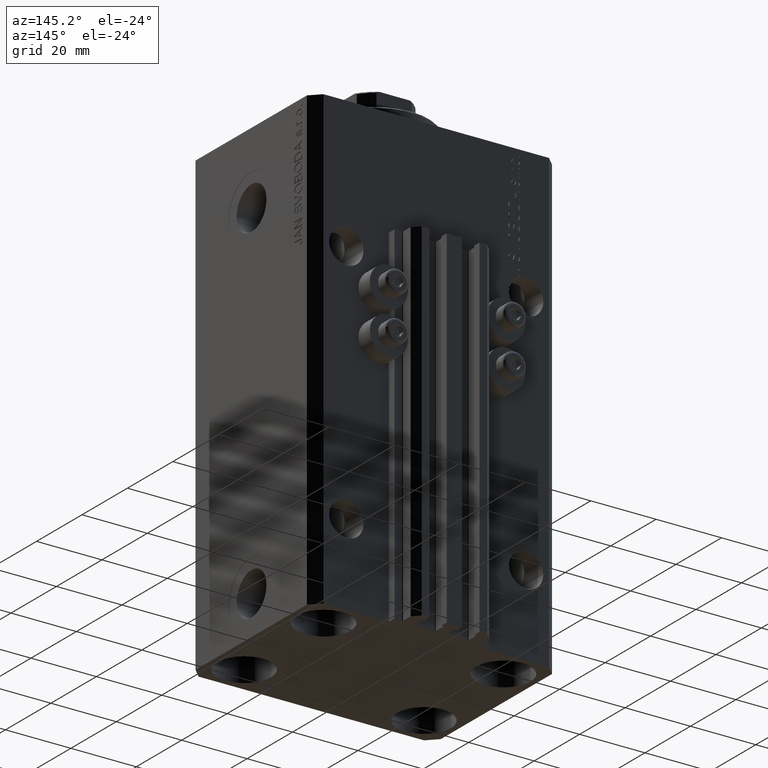
[diagram: clean part render]
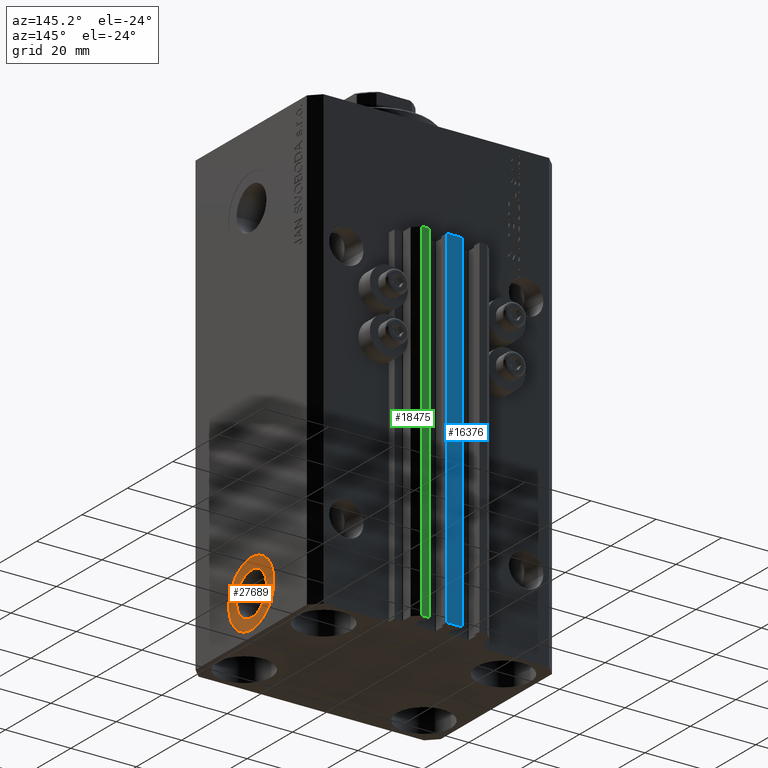
[diagram: same view with three faces highlighted in distinct colors, each labeled with its STEP entity id]
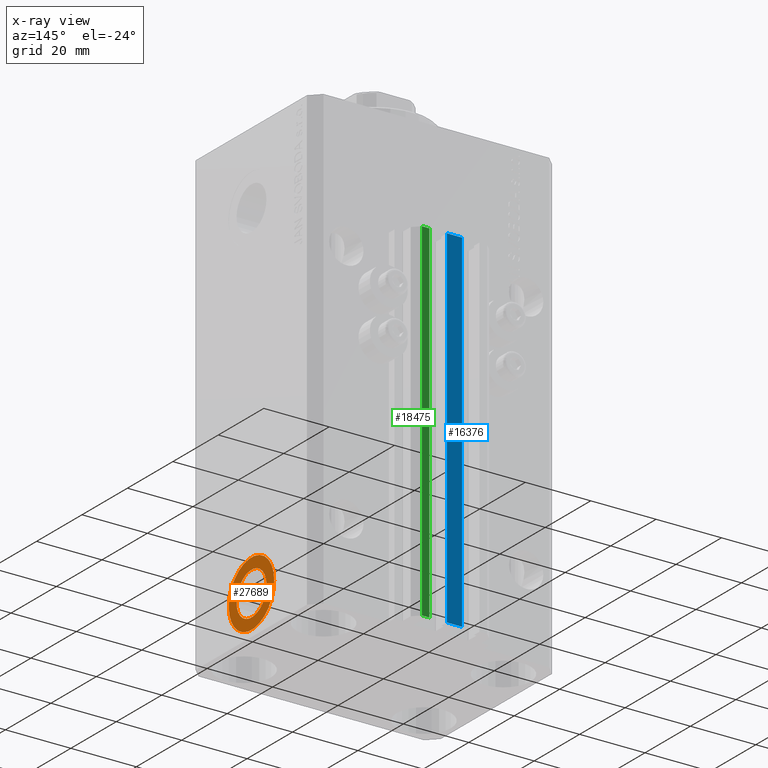
[diagram: x-ray of the same camera — body ghosted, the three highlighted faces saturated]
A machine part, auxiliary view with three faces highlighted in distinct colors.
The next image is the same camera in x-ray (body ghosted, the three faces saturated) — at least one of them is partly hidden behind the body in this view.
Their STEP definitions:

[orange] entity #27689 — the highlighted planar face has unit normal (1, -0, 0).
#1957 = EDGE_LOOP ( 'NONE', ( #30690, #28838 ) ) ;
#6754 = ORIENTED_EDGE ( 'NONE', *, *, #9950, .F. ) ;
#6866 = CIRCLE ( 'NONE', #22345, 10.00000000000000888 ) ;
#7786 = ORIENTED_EDGE ( 'NONE', *, *, #21383, .F. ) ;
#8520 = DIRECTION ( 'NONE',  ( 1.000000000000000000, -1.334402673828349134E-14, 0.000000000000000000 ) ) ;
#9798 = FACE_OUTER_BOUND ( 'NONE', #1957, .T. ) ;
#9950 = EDGE_CURVE ( 'NONE', #30532, #15341, #47478, .T. ) ;
#12678 = AXIS2_PLACEMENT_3D ( 'NONE', #16734, #13090, #28342 ) ;
#12942 = AXIS2_PLACEMENT_3D ( 'NONE', #28640, #32499, #43419 ) ;
#13090 = DIRECTION ( 'NONE',  ( 1.000000000000000000, -1.334402673828349134E-14, 0.000000000000000000 ) ) ;
#13558 = EDGE_LOOP ( 'NONE', ( #7786, #6754 ) ) ;
#14101 = DIRECTION ( 'NONE',  ( 1.318389841742372287E-14, 1.000000000000000000, 0.000000000000000000 ) ) ;
#15341 = VERTEX_POINT ( 'NONE', #45704 ) ;
#16068 = CIRCLE ( 'NONE', #12942, 6.579999999999985860 ) ;
#16734 = CARTESIAN_POINT ( 'NONE',  ( 37.40000000000025437, -4.022543243901666471E-13, -128.0000000000000000 ) ) ;
#17380 = VERTEX_POINT ( 'NONE', #33471 ) ;
#19926 = CIRCLE ( 'NONE', #21511, 10.00000000000000888 ) ;
#20937 = CARTESIAN_POINT ( 'NONE',  ( 37.40000000000025437, -4.022543243901666471E-13, -128.0000000000000000 ) ) ;
#21383 = EDGE_CURVE ( 'NONE', #15341, #30532, #16068, .T. ) ;
#21511 = AXIS2_PLACEMENT_3D ( 'NONE', #32726, #25475, #14101 ) ;
#22345 = AXIS2_PLACEMENT_3D ( 'NONE', #41700, #8520, #38067 ) ;
#22726 = EDGE_CURVE ( 'NONE', #43411, #17380, #19926, .T. ) ;
#25475 = DIRECTION ( 'NONE',  ( 1.000000000000000000, -1.334402673828349134E-14, 0.000000000000000000 ) ) ;
#27689 = ADVANCED_FACE ( 'NONE', ( #32070, #9798 ), #46388, .T. ) ;
#28342 = DIRECTION ( 'NONE',  ( 1.370906090437601279E-14, 1.000000000000000000, 0.000000000000000000 ) ) ;
#28448 = DIRECTION ( 'NONE',  ( 1.000000000000000000, -1.334402673828349134E-14, 0.000000000000000000 ) ) ;
#28640 = CARTESIAN_POINT ( 'NONE',  ( 37.40000000000025437, -4.022543243901666471E-13, -128.0000000000000000 ) ) ;
#28838 = ORIENTED_EDGE ( 'NONE', *, *, #40343, .T. ) ;
#30532 = VERTEX_POINT ( 'NONE', #46906 ) ;
#30690 = ORIENTED_EDGE ( 'NONE', *, *, #22726, .T. ) ;
#32070 = FACE_BOUND ( 'NONE', #13558, .T. ) ;
#32499 = DIRECTION ( 'NONE',  ( 1.000000000000000000, -1.334402673828349134E-14, 0.000000000000000000 ) ) ;
#32726 = CARTESIAN_POINT ( 'NONE',  ( 37.40000000000025437, -4.022543243901666471E-13, -128.0000000000000000 ) ) ;
#33471 = CARTESIAN_POINT ( 'NONE',  ( 37.40000000000011937, -10.00000000000041211, -128.0000000000000000 ) ) ;
#35579 = AXIS2_PLACEMENT_3D ( 'NONE', #20937, #28448, #38879 ) ;
#38067 = DIRECTION ( 'NONE',  ( 1.318389841742372287E-14, 1.000000000000000000, 0.000000000000000000 ) ) ;
#38879 = DIRECTION ( 'NONE',  ( 1.334402673828349134E-14, 1.000000000000000000, 0.000000000000000000 ) ) ;
#40343 = EDGE_CURVE ( 'NONE', #17380, #43411, #6866, .T. ) ;
#41700 = CARTESIAN_POINT ( 'NONE',  ( 37.40000000000025437, -4.022543243901666471E-13, -128.0000000000000000 ) ) ;
#42386 = CARTESIAN_POINT ( 'NONE',  ( 37.40000000000038227, 9.999999999999605649, -128.0000000000000000 ) ) ;
#43411 = VERTEX_POINT ( 'NONE', #42386 ) ;
#43419 = DIRECTION ( 'NONE',  ( 1.370906090437601279E-14, 1.000000000000000000, 0.000000000000000000 ) ) ;
#45704 = CARTESIAN_POINT ( 'NONE',  ( 37.40000000000033964, 6.579999999999583515, -128.0000000000000000 ) ) ;
#46388 = PLANE ( 'NONE',  #35579 ) ;
#46906 = CARTESIAN_POINT ( 'NONE',  ( 37.40000000000016200, -6.580000000000387317, -128.0000000000000000 ) ) ;
#47478 = CIRCLE ( 'NONE', #12678, 6.579999999999985860 ) ;

[blue] entity #16376 — the highlighted planar face has unit normal (0, -1, 0).
#1193 = VERTEX_POINT ( 'NONE', #43509 ) ;
#1341 = LINE ( 'NONE', #8359, #43031 ) ;
#5430 = CARTESIAN_POINT ( 'NONE',  ( -2.350000000000003642, 35.50000000000001421, -140.0000000000000000 ) ) ;
#6577 = AXIS2_PLACEMENT_3D ( 'NONE', #5430, #42725, #16568 ) ;
#8359 = CARTESIAN_POINT ( 'NONE',  ( 2.349999999999999645, 35.50000000000001421, -140.0000000000000000 ) ) ;
#10848 = VECTOR ( 'NONE', #29806, 1000.000000000000000 ) ;
#10899 = VERTEX_POINT ( 'NONE', #38541 ) ;
#14556 = VECTOR ( 'NONE', #41049, 1000.000000000000000 ) ;
#14784 = ORIENTED_EDGE ( 'NONE', *, *, #31395, .T. ) ;
#15039 = LINE ( 'NONE', #26660, #10848 ) ;
#16376 = ADVANCED_FACE ( 'NONE', ( #16807 ), #46353, .F. ) ;
#16568 = DIRECTION ( 'NONE',  ( 0.000000000000000000, -0.000000000000000000, -1.000000000000000000 ) ) ;
#16807 = FACE_OUTER_BOUND ( 'NONE', #32470, .T. ) ;
#18221 = EDGE_CURVE ( 'NONE', #1193, #21465, #1341, .T. ) ;
#20316 = CARTESIAN_POINT ( 'NONE',  ( -2.350000000000003642, 35.50000000000001421, -140.0000000000000000 ) ) ;
#21465 = VERTEX_POINT ( 'NONE', #41216 ) ;
#26450 = ORIENTED_EDGE ( 'NONE', *, *, #38632, .F. ) ;
#26660 = CARTESIAN_POINT ( 'NONE',  ( -2.350000000000003642, 35.50000000000001421, -33.00000000000000000 ) ) ;
#26775 = DIRECTION ( 'NONE',  ( 0.000000000000000000, 0.000000000000000000, 1.000000000000000000 ) ) ;
#29806 = DIRECTION ( 'NONE',  ( 1.000000000000000000, 0.000000000000000000, 0.000000000000000000 ) ) ;
#30715 = CARTESIAN_POINT ( 'NONE',  ( -2.350000000000003642, 35.50000000000001421, -140.0000000000000000 ) ) ;
#31395 = EDGE_CURVE ( 'NONE', #10899, #21465, #15039, .T. ) ;
#31450 = DIRECTION ( 'NONE',  ( 0.000000000000000000, 0.000000000000000000, 1.000000000000000000 ) ) ;
#32470 = EDGE_LOOP ( 'NONE', ( #14784, #45594, #26450, #44829 ) ) ;
#32622 = VECTOR ( 'NONE', #31450, 1000.000000000000000 ) ;
#33775 = CARTESIAN_POINT ( 'NONE',  ( -2.350000000000003642, 35.50000000000001421, -140.0000000000000000 ) ) ;
#36003 = VERTEX_POINT ( 'NONE', #30715 ) ;
#38541 = CARTESIAN_POINT ( 'NONE',  ( -2.350000000000003642, 35.50000000000001421, -33.00000000000000000 ) ) ;
#38632 = EDGE_CURVE ( 'NONE', #36003, #1193, #41768, .T. ) ;
#38730 = LINE ( 'NONE', #20316, #32622 ) ;
#41049 = DIRECTION ( 'NONE',  ( 1.000000000000000000, 0.000000000000000000, 0.000000000000000000 ) ) ;
#41216 = CARTESIAN_POINT ( 'NONE',  ( 2.349999999999999645, 35.50000000000001421, -33.00000000000000000 ) ) ;
#41768 = LINE ( 'NONE', #33775, #14556 ) ;
#42725 = DIRECTION ( 'NONE',  ( 0.000000000000000000, -1.000000000000000000, 0.000000000000000000 ) ) ;
#43031 = VECTOR ( 'NONE', #26775, 1000.000000000000000 ) ;
#43509 = CARTESIAN_POINT ( 'NONE',  ( 2.349999999999999645, 35.50000000000001421, -140.0000000000000000 ) ) ;
#44829 = ORIENTED_EDGE ( 'NONE', *, *, #47464, .T. ) ;
#45594 = ORIENTED_EDGE ( 'NONE', *, *, #18221, .F. ) ;
#46353 = PLANE ( 'NONE',  #6577 ) ;
#47464 = EDGE_CURVE ( 'NONE', #36003, #10899, #38730, .T. ) ;

[green] entity #18475 — the highlighted planar face has unit normal (0, 1, 0).
#741 = DIRECTION ( 'NONE',  ( 0.000000000000000000, 1.000000000000000000, -0.000000000000000000 ) ) ;
#4294 = CARTESIAN_POINT ( 'NONE',  ( 7.649999999999998579, 35.50000000000001421, -140.0000000000000000 ) ) ;
#4447 = VECTOR ( 'NONE', #40727, 1000.000000000000000 ) ;
#5848 = EDGE_LOOP ( 'NONE', ( #19737, #26745, #46583, #39884 ) ) ;
#5904 = AXIS2_PLACEMENT_3D ( 'NONE', #30277, #741, #15518 ) ;
#6028 = VECTOR ( 'NONE', #10892, 1000.000000000000000 ) ;
#10892 = DIRECTION ( 'NONE',  ( 0.000000000000000000, 0.000000000000000000, 1.000000000000000000 ) ) ;
#11340 = CARTESIAN_POINT ( 'NONE',  ( 9.999999999999998224, 35.50000000000001421, -140.0000000000000000 ) ) ;
#11554 = DIRECTION ( 'NONE',  ( 0.000000000000000000, 0.000000000000000000, 1.000000000000000000 ) ) ;
#12572 = DIRECTION ( 'NONE',  ( -1.000000000000000000, 0.000000000000000000, 0.000000000000000000 ) ) ;
#15251 = EDGE_CURVE ( 'NONE', #42456, #21243, #41584, .T. ) ;
#15518 = DIRECTION ( 'NONE',  ( 0.000000000000000000, 0.000000000000000000, 1.000000000000000000 ) ) ;
#16890 = CARTESIAN_POINT ( 'NONE',  ( 7.649999999999998579, 35.50000000000001421, -140.0000000000000000 ) ) ;
#18475 = ADVANCED_FACE ( 'NONE', ( #27731 ), #29559, .T. ) ;
#19737 = ORIENTED_EDGE ( 'NONE', *, *, #21474, .F. ) ;
#20594 = VECTOR ( 'NONE', #11554, 1000.000000000000000 ) ;
#21079 = CARTESIAN_POINT ( 'NONE',  ( 9.999999999999998224, 35.50000000000001421, -140.0000000000000000 ) ) ;
#21243 = VERTEX_POINT ( 'NONE', #35196 ) ;
#21474 = EDGE_CURVE ( 'NONE', #37121, #21243, #33215, .T. ) ;
#22823 = CARTESIAN_POINT ( 'NONE',  ( 9.999999999999998224, 35.50000000000001421, -33.00000000000000000 ) ) ;
#23721 = LINE ( 'NONE', #34844, #30845 ) ;
#24458 = EDGE_CURVE ( 'NONE', #27226, #42456, #23721, .T. ) ;
#26745 = ORIENTED_EDGE ( 'NONE', *, *, #38074, .F. ) ;
#27226 = VERTEX_POINT ( 'NONE', #11340 ) ;
#27731 = FACE_OUTER_BOUND ( 'NONE', #5848, .T. ) ;
#29559 = PLANE ( 'NONE',  #5904 ) ;
#30277 = CARTESIAN_POINT ( 'NONE',  ( 9.999999999999998224, 35.50000000000001421, -140.0000000000000000 ) ) ;
#30845 = VECTOR ( 'NONE', #12572, 1000.000000000000000 ) ;
#33215 = LINE ( 'NONE', #22823, #4447 ) ;
#34844 = CARTESIAN_POINT ( 'NONE',  ( 9.999999999999998224, 35.50000000000001421, -140.0000000000000000 ) ) ;
#35196 = CARTESIAN_POINT ( 'NONE',  ( 7.649999999999998579, 35.50000000000001421, -33.00000000000000000 ) ) ;
#37121 = VERTEX_POINT ( 'NONE', #41394 ) ;
#38074 = EDGE_CURVE ( 'NONE', #27226, #37121, #43369, .T. ) ;
#39884 = ORIENTED_EDGE ( 'NONE', *, *, #15251, .T. ) ;
#40727 = DIRECTION ( 'NONE',  ( -1.000000000000000000, 0.000000000000000000, 0.000000000000000000 ) ) ;
#41394 = CARTESIAN_POINT ( 'NONE',  ( 9.999999999999998224, 35.50000000000001421, -33.00000000000000000 ) ) ;
#41584 = LINE ( 'NONE', #4294, #20594 ) ;
#42456 = VERTEX_POINT ( 'NONE', #16890 ) ;
#43369 = LINE ( 'NONE', #21079, #6028 ) ;
#46583 = ORIENTED_EDGE ( 'NONE', *, *, #24458, .T. ) ;